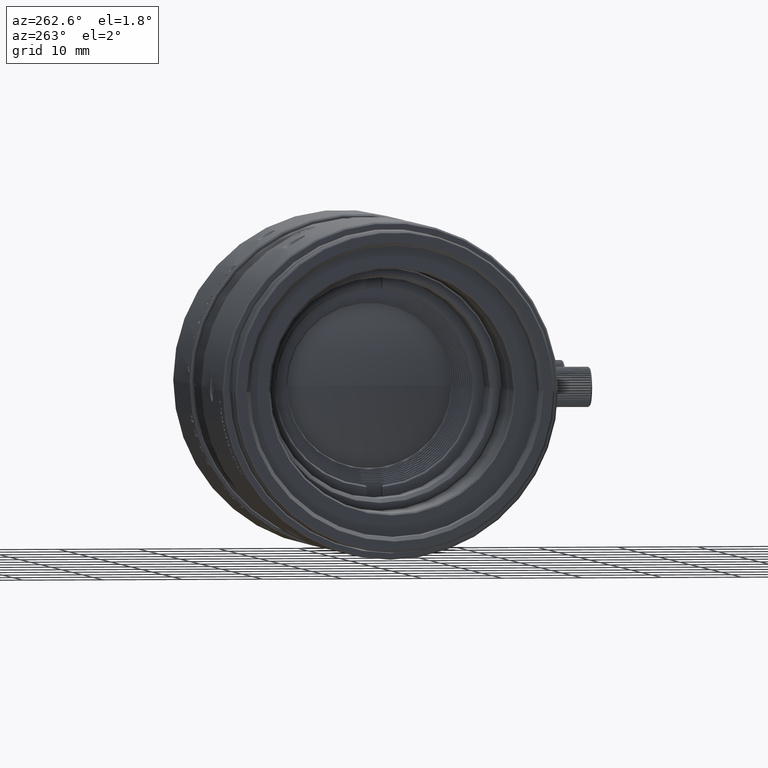
[diagram: clean part render]
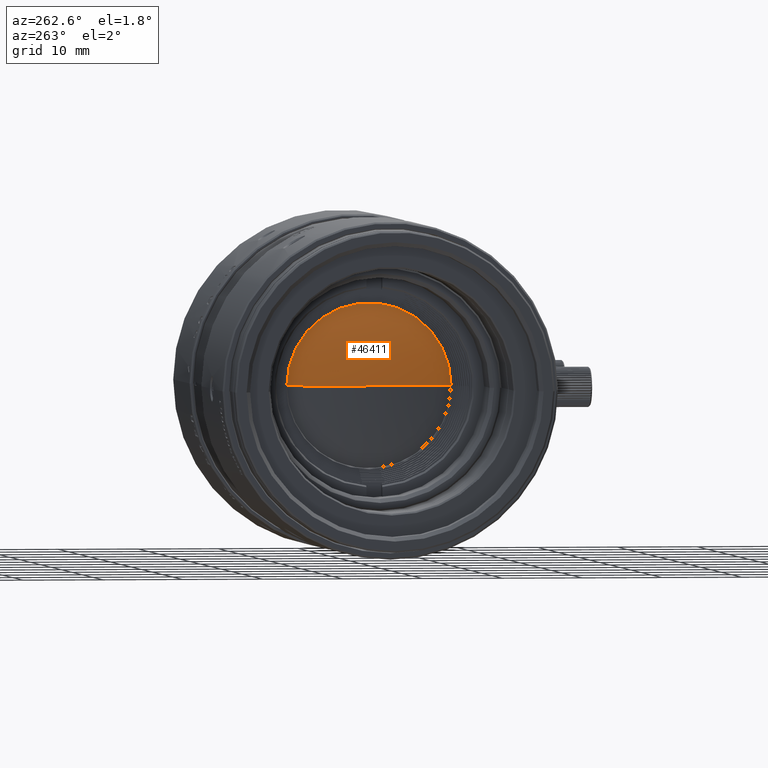
[diagram: same view with one face highlighted and labeled with its STEP entity id]
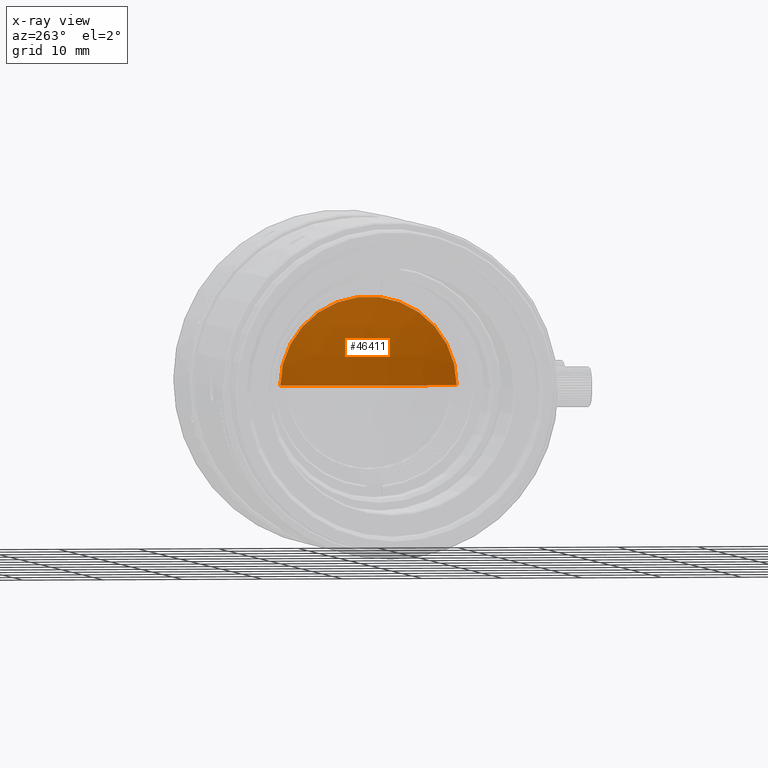
[diagram: x-ray of the same camera — body ghosted, the highlighted face saturated]
A machine part, auxiliary view. The second image highlights one B-rep face of the part: STEP entity #46411.
The next image is the same camera in x-ray: the body ghosted, the highlighted face saturated — about 0% of this face is hidden behind the body in this view.
In plain terms, the highlighted spherical surface has radius 34.89 mm.
Its self-contained STEP definition (entity closure, byte-faithful):
#5808 = AXIS2_PLACEMENT_3D ( 'NONE', #114261, #71474, #62134 ) ;
#6425 = EDGE_LOOP ( 'NONE', ( #102120, #10892 ) ) ;
#6666 = DIRECTION ( 'NONE',  ( 0.000000000000000000, 0.000000000000000000, -1.000000000000000000 ) ) ;
#8310 = CIRCLE ( 'NONE', #72249, 11.04999999998999982 ) ;
#10892 = ORIENTED_EDGE ( 'NONE', *, *, #64925, .F. ) ;
#10934 = DIRECTION ( 'NONE',  ( 1.000000000000000000, 0.000000000000000000, 0.000000000000000000 ) ) ;
#46411 = ADVANCED_FACE ( 'NONE', ( #119542 ), #126471, .T. ) ;
#49338 = CARTESIAN_POINT ( 'NONE',  ( 47.23999999998000732, 0.000000000000000000, 0.000000000000000000 ) ) ;
#62134 = DIRECTION ( 'NONE',  ( -1.000000000000000000, 0.000000000000000000, 0.000000000000000000 ) ) ;
#64925 = EDGE_CURVE ( 'NONE', #69459, #117310, #8310, .T. ) ;
#69459 = VERTEX_POINT ( 'NONE', #115487 ) ;
#71474 = DIRECTION ( 'NONE',  ( 0.000000000000000000, 0.000000000000000000, 1.000000000000000000 ) ) ;
#72249 = AXIS2_PLACEMENT_3D ( 'NONE', #72329, #10934, #92378 ) ;
#72329 = CARTESIAN_POINT ( 'NONE',  ( 14.14604889105000041, 0.000000000000000000, 0.000000000000000000 ) ) ;
#89583 = EDGE_CURVE ( 'NONE', #69459, #117310, #120977, .T. ) ;
#92378 = DIRECTION ( 'NONE',  ( 0.000000000000000000, 1.000000000000000000, 0.000000000000000000 ) ) ;
#92438 = CARTESIAN_POINT ( 'NONE',  ( 14.14604889105000041, -11.04999999998999982, 0.000000000000000000 ) ) ;
#97447 = AXIS2_PLACEMENT_3D ( 'NONE', #49338, #6666, #105750 ) ;
#102120 = ORIENTED_EDGE ( 'NONE', *, *, #89583, .T. ) ;
#105750 = DIRECTION ( 'NONE',  ( 0.000000000000000000, 1.000000000000000000, 0.000000000000000000 ) ) ;
#114261 = CARTESIAN_POINT ( 'NONE',  ( 47.23999999998000732, 0.000000000000000000, 0.000000000000000000 ) ) ;
#115487 = CARTESIAN_POINT ( 'NONE',  ( 14.14604889105000041, 11.04999999998999982, 0.000000000000000000 ) ) ;
#117310 = VERTEX_POINT ( 'NONE', #92438 ) ;
#119542 = FACE_OUTER_BOUND ( 'NONE', #6425, .T. ) ;
#120977 = CIRCLE ( 'NONE', #5808, 34.89000000000000057 ) ;
#126471 = SPHERICAL_SURFACE ( 'NONE', #97447, 34.89000000000000057 ) ;